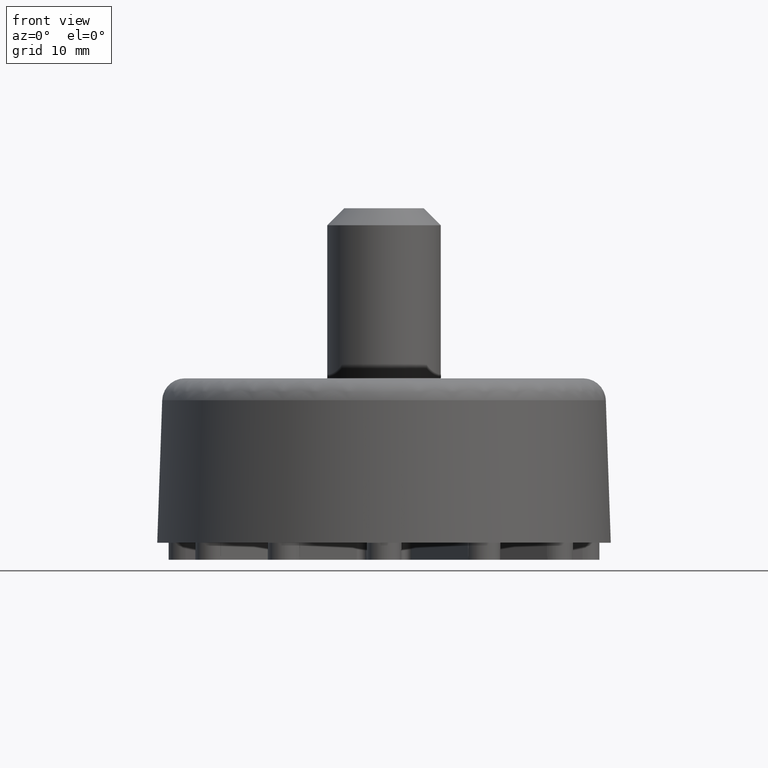
[diagram: clean part render]
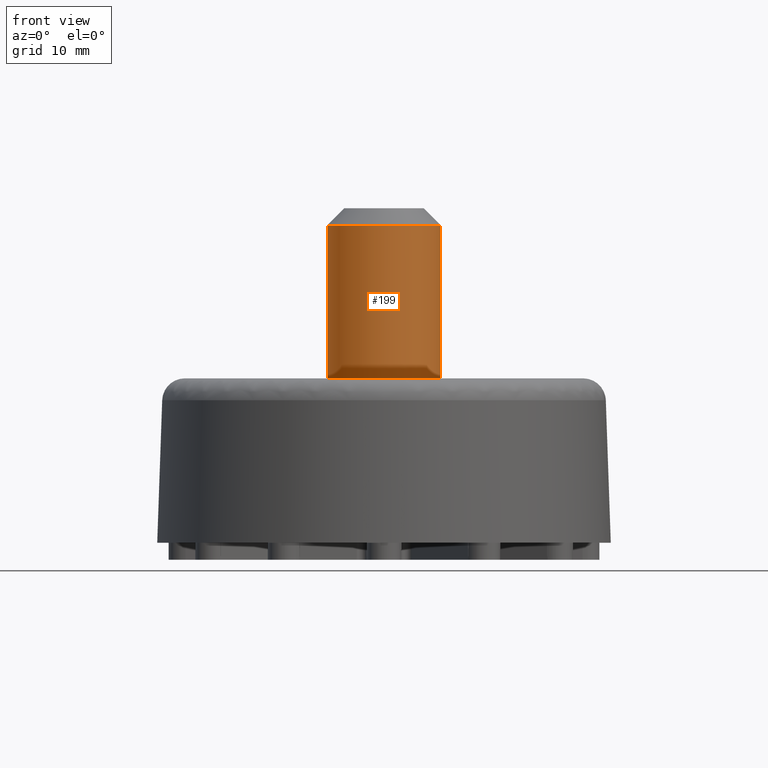
[diagram: same view with one face highlighted and labeled with its STEP entity id]
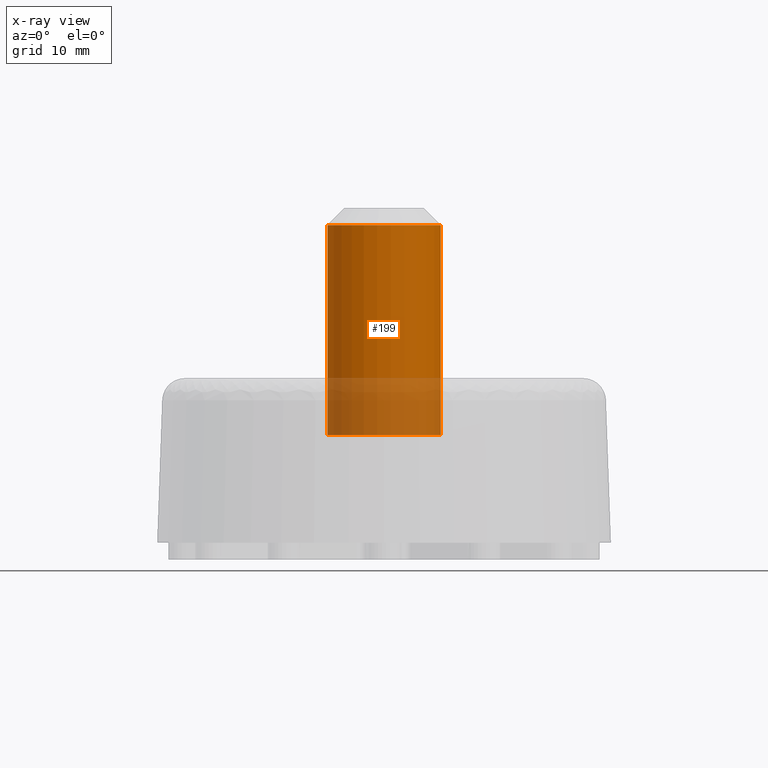
[diagram: x-ray of the same camera — body ghosted, the highlighted face saturated]
A machine part, front view. The second image highlights one B-rep face of the part: STEP entity #199.
The next image is the same camera in x-ray: the body ghosted, the highlighted face saturated — about 27% of this face is hidden behind the body in this view.
In plain terms, the highlighted cylindrical surface (partial cylindrical patch) has radius 5 mm, axis along (-0, 0, -1).
Its self-contained STEP definition (entity closure, byte-faithful):
#199=ADVANCED_FACE('',(#1796),#1795,.T.);
#1795=CYLINDRICAL_SURFACE('',#2753,5.00000000000E+00);
#1796=FACE_OUTER_BOUND('',#2754,.T.);
#2750=CARTESIAN_POINT('',(0.00000000000E+00,0.00000000000E+00,-9.69000000000E+02));
#2751=DIRECTION('',(-0.00000000000E+00,0.00000000000E+00,-1.00000000000E+00));
#2752=DIRECTION('',(1.00000000000E+00,1.22464679915E-16,0.00000000000E+00));
#2753=AXIS2_PLACEMENT_3D('',#2750,#2751,#2752);
#2754=EDGE_LOOP('',(#3580,#3581,#3582,#3583));
#3580=ORIENTED_EDGE('',*,*,#3789,.T.);
#3581=ORIENTED_EDGE('',*,*,#4000,.F.);
#3582=ORIENTED_EDGE('',*,*,#3989,.T.);
#3583=ORIENTED_EDGE('',*,*,#4001,.T.);
#3789=EDGE_CURVE('',#5386,#5385,#5393,.T.);
#3989=EDGE_CURVE('',#6645,#6644,#6664,.T.);
#4000=EDGE_CURVE('',#6645,#5385,#6733,.T.);
#4001=EDGE_CURVE('',#6644,#5386,#6739,.T.);
#5385=VERTEX_POINT('',#7572);
#5386=VERTEX_POINT('',#7573);
#5393=CIRCLE('',#7581,5.00000000000E+00);
#6644=VERTEX_POINT('',#8387);
#6645=VERTEX_POINT('',#8388);
#6664=CIRCLE('',#8400,5.00000000000E+00);
#6733=(BOUNDED_CURVE() B_SPLINE_CURVE(1,(#8434,#8435),.UNSPECIFIED.,.F.,.F.) B_SPLINE_CURVE_WITH_KNOTS((2,2),(8.33333328360E-02,9.16666665505E-01),.UNSPECIFIED.) CURVE() GEOMETRIC_REPRESENTATION_ITEM() RATIONAL_B_SPLINE_CURVE((1.00000000000E+00,1.00000000000E+00)) REPRESENTATION_ITEM('') );
#6739=(BOUNDED_CURVE() B_SPLINE_CURVE(1,(#8436,#8437),.UNSPECIFIED.,.F.,.F.) B_SPLINE_CURVE_WITH_KNOTS((2,2),(8.33333333333E-02,9.16666666667E-01),.UNSPECIFIED.) CURVE() GEOMETRIC_REPRESENTATION_ITEM() RATIONAL_B_SPLINE_CURVE((7.50000000000E-01,7.50000000000E-01)) REPRESENTATION_ITEM('') );
#7572=CARTESIAN_POINT('',(5.00000000000E+00,5.92118946467E-16,1.10000000000E+01));
#7573=CARTESIAN_POINT('',(-5.00000000000E+00,0.00000000000E+00,1.10000000000E+01));
#7578=CARTESIAN_POINT('',(0.00000000000E+00,0.00000000000E+00,1.10000000000E+01));
#7579=DIRECTION('',(0.00000000000E+00,0.00000000000E+00,1.00000000000E+00));
#7580=DIRECTION('',(-1.00000000000E+00,-1.22460635382E-16,0.00000000000E+00));
#7581=AXIS2_PLACEMENT_3D('',#7578,#7579,#7580);
#8387=CARTESIAN_POINT('',(-5.00000000000E+00,5.92118946467E-16,2.95000000000E+01));
#8388=CARTESIAN_POINT('',(5.00000000000E+00,0.00000000000E+00,2.95000000000E+01));
#8397=CARTESIAN_POINT('',(0.00000000000E+00,0.00000000000E+00,2.95000000000E+01));
#8398=DIRECTION('',(0.00000000000E+00,0.00000000000E+00,-1.00000000000E+00));
#8399=DIRECTION('',(1.00000000000E+00,-1.22460635382E-16,0.00000000000E+00));
#8400=AXIS2_PLACEMENT_3D('',#8397,#8398,#8399);
#8434=CARTESIAN_POINT('',(5.00000000000E+00,6.12323399574E-16,2.95000000110E+01));
#8435=CARTESIAN_POINT('',(5.00000000000E+00,6.12323399574E-16,1.10000000258E+01));
#8436=CARTESIAN_POINT('',(-5.00000000000E+00,-2.96059473233E-16,2.95000000000E+01));
#8437=CARTESIAN_POINT('',(-5.00000000000E+00,-2.96059473233E-16,1.10000000000E+01));